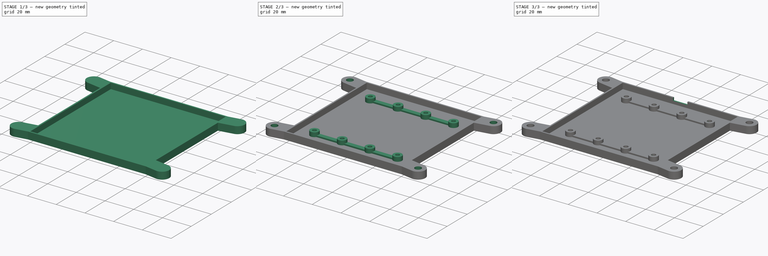
[diagram: build sequence overview — one tinted view per stage of 3, left to right]
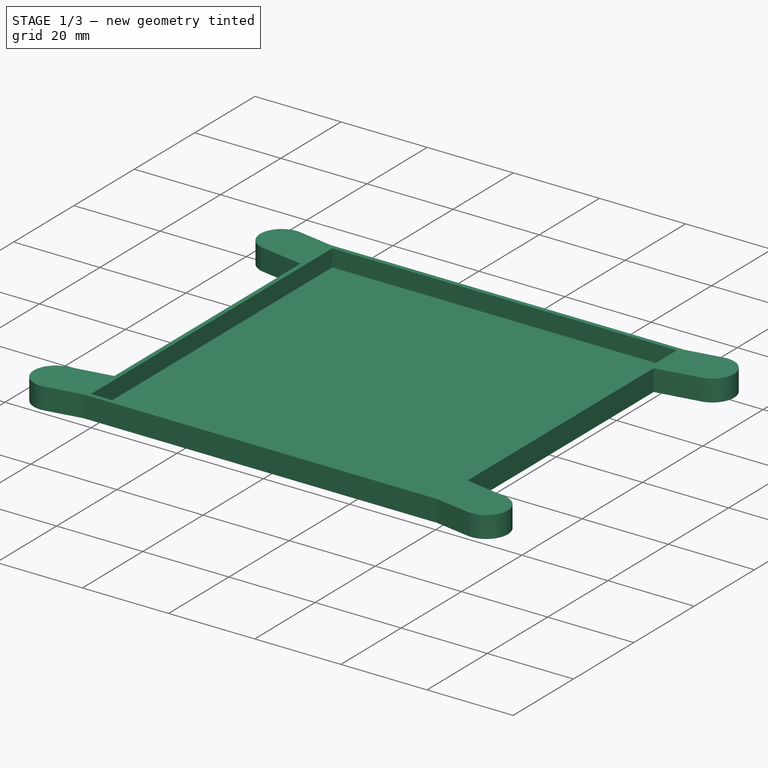
[diagram: stage 1 of 3 — iso view after this stage's code; geometry added in this stage tinted green]
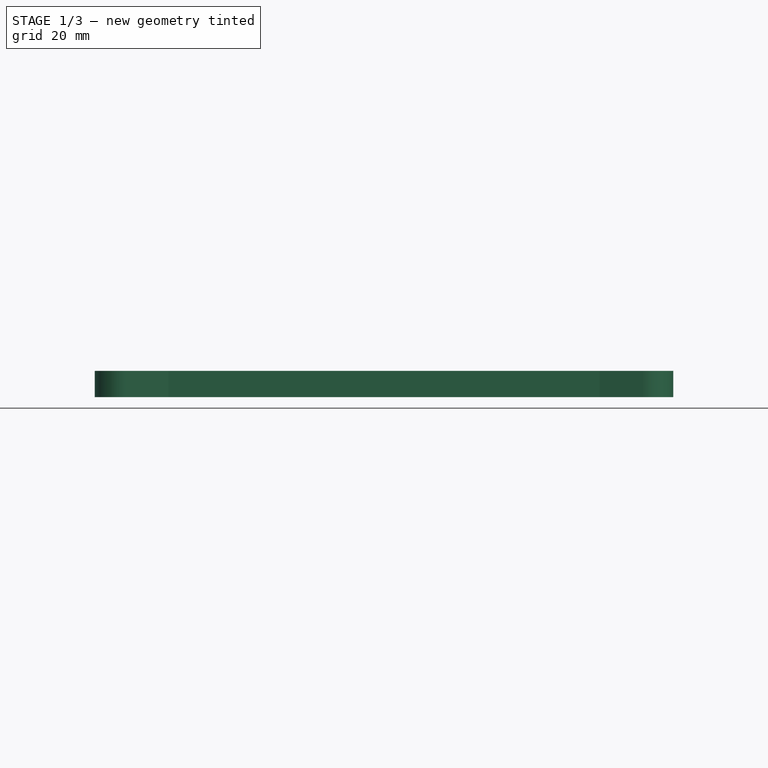
[diagram: stage 1 of 3 — front view after this stage's code; geometry added in this stage tinted green]
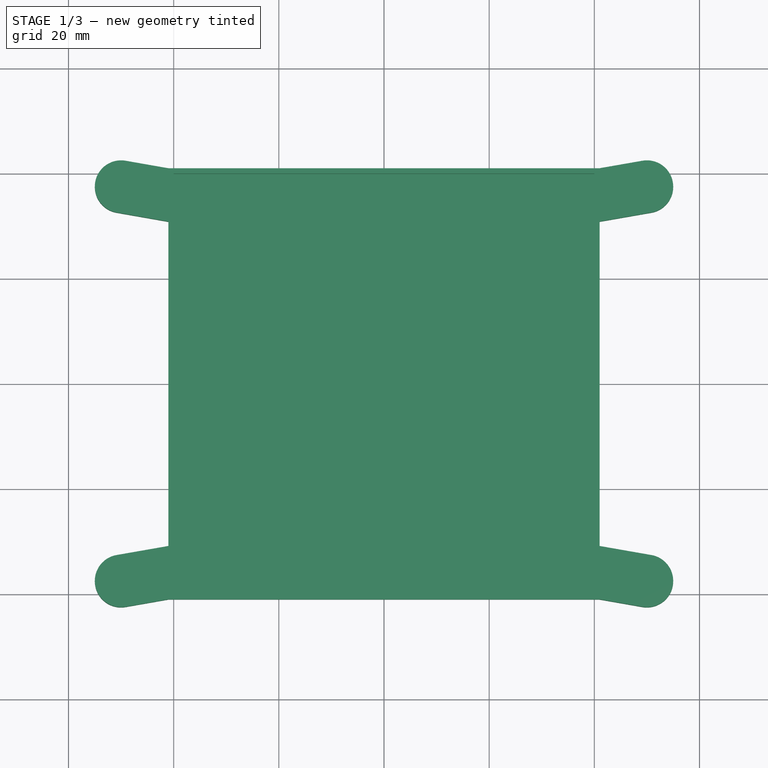
[diagram: stage 1 of 3 — top view after this stage's code; geometry added in this stage tinted green]
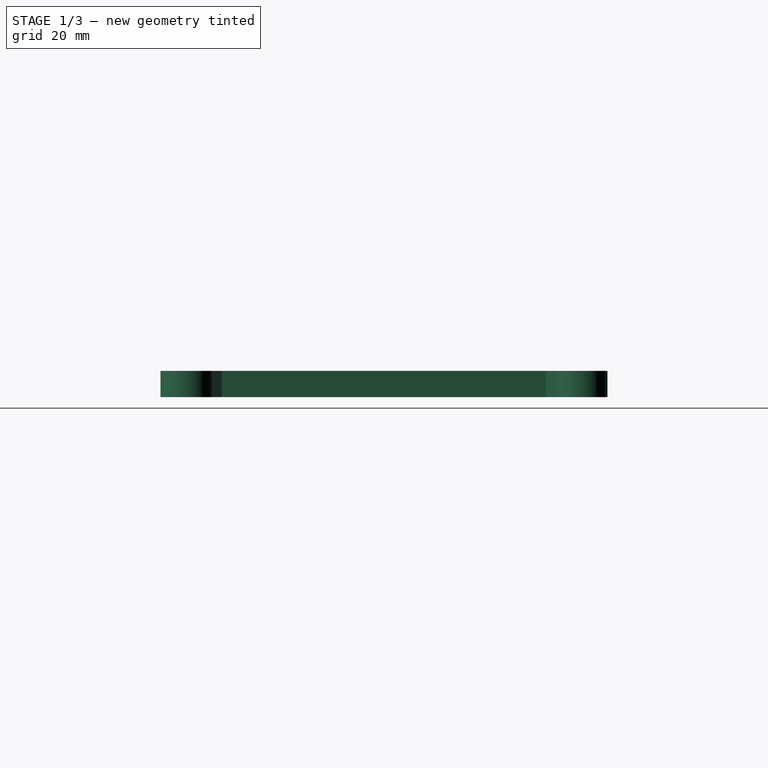
[diagram: stage 1 of 3 — right view after this stage's code; geometry added in this stage tinted green]
FCSTD DOCUMENT  (FreeCAD 1.0R38641 +678 (Git))
Label: foundation
License: All rights reserved
LicenseURL: https://en.wikipedia.org/wiki/All_rights_reserved
objects: Sketcher::SketchObject×7, PartDesign::Pad×4, PartDesign::Pocket×3, PartDesign::Body×1
note: 36 computed .brp shape members not serialized (recipe doc carries the construction recipe); baked Part::Feature solids carry a one-line shape summary decoded from their .brp

FEATURE [Sketcher::SketchObject] Sketch111
  ArcFitTolerance = 0
  AttachmentSupport = -> [XY_Plane013]
  FullyConstrained = true
  MakeInternals = false
  MapMode = 5
  sketch-geometry (24):
    g0: LineSegment StartX=-40 StartY=40 StartZ=0 EndX=40 EndY=40 EndZ=0
    g1: LineSegment StartX=-40 StartY=40 StartZ=0 EndX=-40 EndY=-40 EndZ=0
    g2: LineSegment StartX=-40 StartY=-40 StartZ=0 EndX=40 EndY=-40 EndZ=0
    g3: LineSegment StartX=40 StartY=40 StartZ=0 EndX=40 EndY=-40 EndZ=0
    g4: LineSegment StartX=-41.0206 StartY=41 StartZ=0 EndX=40.9794 EndY=41 EndZ=0
    g5: LineSegment StartX=41 StartY=30.8522 StartZ=0 EndX=41 EndY=-30.8478 EndZ=0
    g6: LineSegment StartX=41 StartY=-41 StartZ=0 EndX=-41 EndY=-41 EndZ=0
    g7: LineSegment StartX=-41 StartY=-30.8478 StartZ=0 EndX=-41 EndY=30.8434 EndZ=0
    g8: GeomPoint [constr] X=50 Y=37.5 Z=0
    g9: GeomPoint [constr] X=-50 Y=37.5 Z=0
    g10: GeomPoint [constr] X=-50 Y=-37.5 Z=0
    g11: GeomPoint [constr] X=50 Y=-37.5 Z=0
    g12: ArcOfCircle CenterX=50 CenterY=37.5 CenterZ=0 NormalX=0 NormalY=0 NormalZ=1 AngleXU=0 Radius=5 StartAngle=4.88532 EndAngle=8.02692
    g13: ArcOfCircle CenterX=-50 CenterY=37.5 CenterZ=0 NormalX=0 NormalY=0 NormalZ=1 AngleXU=0 Radius=5 StartAngle=1.397 EndAngle=4.53859
    g14: ArcOfCircle CenterX=-50 CenterY=-37.5 CenterZ=0 NormalX=0 NormalY=0 NormalZ=1 AngleXU=0 Radius=5 StartAngle=1.74416 EndAngle=4.88575
    g15: ArcOfCircle CenterX=50 CenterY=-37.5 CenterZ=0 NormalX=0 NormalY=0 NormalZ=1 AngleXU=0 Radius=5 StartAngle=4.53903 EndAngle=7.68062
    g16: LineSegment StartX=-49.1375 StartY=-42.4251 StartZ=0 EndX=-41 EndY=-41 EndZ=0
    g17: LineSegment StartX=41 StartY=-41 StartZ=0 EndX=49.1375 EndY=-42.4251 EndZ=0
    g18: LineSegment StartX=49.1396 StartY=42.4254 StartZ=0 EndX=40.9794 EndY=41 EndZ=0
    g19: LineSegment StartX=-41.0206 StartY=41 StartZ=0 EndX=-49.1354 EndY=42.4247 EndZ=0
    g20: LineSegment StartX=41 StartY=30.8522 StartZ=0 EndX=50.8604 EndY=32.5746 EndZ=0
    g21: LineSegment StartX=-41 StartY=30.8434 StartZ=0 EndX=-50.8646 EndY=32.5753 EndZ=0
    g22: LineSegment StartX=-50.8625 StartY=-32.5749 StartZ=0 EndX=-41 EndY=-30.8478 EndZ=0
    g23: LineSegment StartX=50.8625 StartY=-32.5749 StartZ=0 EndX=41 EndY=-30.8478 EndZ=0
  constraints (60):
    c: Horizontal(g0)
    c: DistanceX(g0,g0) = 80
    c: Coincident(g1,g0)
    c: Vertical(g1)
    c: DistanceY(g1,g1) = 80
    c: Distance(g-1,g0) = 40
    c: Distance(g-1,g1) = 40
    c: Coincident(g2,g1)
    c: Horizontal(g2)
    c: Coincident(g3,g0)
    c: Coincident(g3,g2)
    c: Vertical(g3)
    c: Horizontal(g4)
    c: Vertical(g5)
    c: Horizontal(g6)
    c: Vertical(g7)
    c: DistanceY(g6,g4) = 82
    c: Distance(g6,g3) = 1
    c: DistanceX(g4,g4) = 82
    c: Distance(g4,g0) = 1
    c: DistanceX(g-2,g11) = 50
    c: DistanceY(g-1,g10) = -37.5
    c: DistanceX(g-2,g10) = -50
    c: DistanceY(g-1,g9) = 37.5
    c: DistanceX(g-2,g9) = -50
    c: DistanceY(g-1,g8) = 37.5
    c: DistanceX(g-2,g8) = 50
    c: Coincident(g12,g8)
    c: Diameter(g12) = 10
    c: DistanceY(g-1,g11) = -37.5
    c: Coincident(g13,g9)
    c: Coincident(g14,g10)
    c: Coincident(g15,g11)
    c: Equal(g12,g13)
    c: Equal(g13,g14)
    c: Equal(g14,g15)
    c: Coincident(g16,g6)
    c: Coincident(g17,g6)
    c: Coincident(g18,g4)
    c: Coincident(g19,g4)
    c: Parallel(g18,g20)
    c: Parallel(g21,g19)
    c: Parallel(g22,g16)
    c: Parallel(g23,g17)
    c: Coincident(g7,g21)
    c: Coincident(g5,g20)
    c: Coincident(g5,g23)
    c: Coincident(g7,g22)
    c: DistanceX(g6,g6) = 82
    c: Distance(g-1,g5) = 41
    c: DistanceY(g5,g5) = 61.7
    c: Distance(g-1,g7) = 41
    c: Tangent(g13,g21) = 1.5708
    c: Tangent(g13,g19) = -1.5708
    c: Tangent(g12,g18) = -1.5708
    c: Tangent(g12,g20) = -1.5708
    c: Tangent(g15,g23) = -1.5708
    c: Tangent(g15,g17) = -1.5708
    c: Tangent(g14,g16) = -1.5708
    c: Tangent(g14,g22) = 1.5708
FEATURE [PartDesign::Pad] Pad042
  Direction = (0,0,1)
  Length = 5
  Length2 = 10
  Profile = -> Sketch111
  ReferenceAxis = -> Sketch111 [N_Axis]
  Suppressed = false
  Type = 0
FEATURE [Sketcher::SketchObject] Sketch112
  ArcFitTolerance = 0
  FullyConstrained = true
  MakeInternals = false
  MapMode = 5
  sketch-geometry (4):
    g0: LineSegment StartX=-41 StartY=41 StartZ=0 EndX=41 EndY=41 EndZ=0
    g1: LineSegment StartX=41 StartY=41 StartZ=0 EndX=41 EndY=-41 EndZ=0
    g2: LineSegment StartX=41 StartY=-41 StartZ=0 EndX=-41 EndY=-41 EndZ=0
    g3: LineSegment StartX=-41 StartY=-41 StartZ=0 EndX=-41 EndY=41 EndZ=0
  constraints (12):
    c: Coincident(g0,g1)
    c: Coincident(g1,g2)
    c: Coincident(g2,g3)
    c: Coincident(g3,g0)
    c: Horizontal(g0)
    c: Horizontal(g2)
    c: Vertical(g1)
    c: Vertical(g3)
    c: DistanceY(g1,g1) = 82
    c: DistanceX(g0,g0) = 82
    c: Distance(g-1,g1) = 41
    c: Distance(g-1,g0) = 41
FEATURE [PartDesign::Pad] Pad043
  BaseFeature = -> Pad042
  Direction = (0,0,1)
  Length = 1
  Length2 = 10
  Profile = -> Sketch112
  ReferenceAxis = -> Sketch112 [N_Axis]
  Suppressed = false
  Type = 0
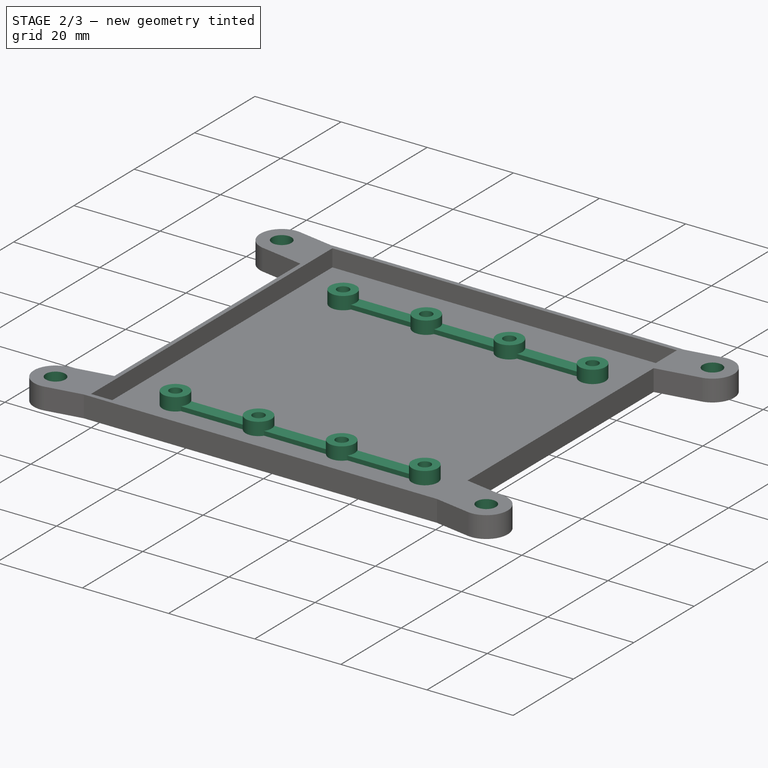
[diagram: stage 2 of 3 — iso view after this stage's code; geometry added in this stage tinted green]
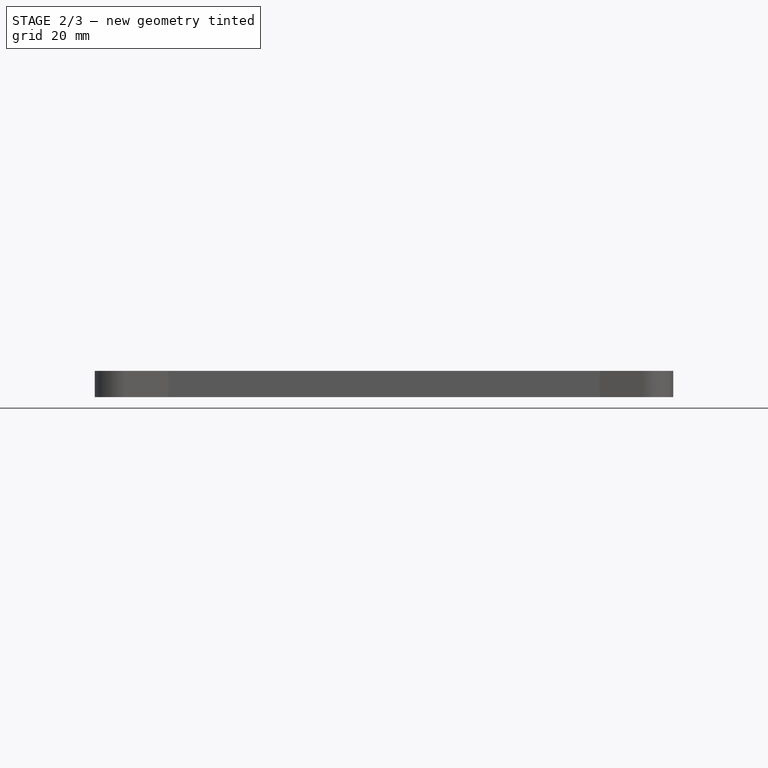
[diagram: stage 2 of 3 — front view after this stage's code; geometry added in this stage tinted green]
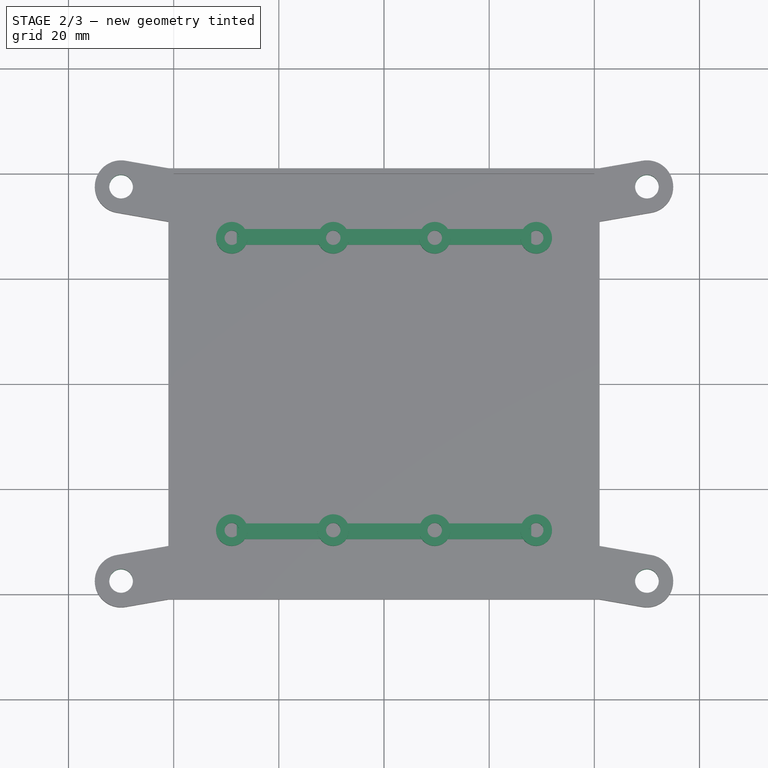
[diagram: stage 2 of 3 — top view after this stage's code; geometry added in this stage tinted green]
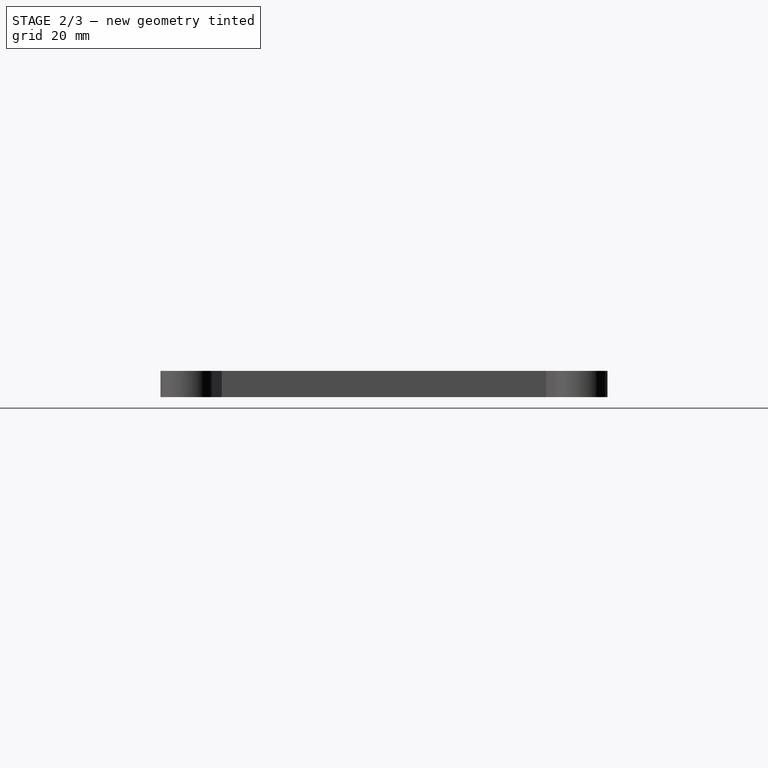
[diagram: stage 2 of 3 — right view after this stage's code; geometry added in this stage tinted green]
FEATURE [Sketcher::SketchObject] Sketch114
  ArcFitTolerance = 0
  AttachmentSupport = -> [XY_Plane013]
  FullyConstrained = true
  MakeInternals = false
  MapMode = 5
  sketch-geometry (24):
    g0: LineSegment [constr] StartX=-39.55 StartY=27.805 StartZ=0 EndX=-39.55 EndY=-27.805 EndZ=0
    g1: LineSegment [constr] StartX=-39.55 StartY=27.805 StartZ=0 EndX=40.45 EndY=27.805 EndZ=0
    g2: LineSegment [constr] StartX=-39.55 StartY=-27.805 StartZ=0 EndX=40.45 EndY=-27.805 EndZ=0
    g3: LineSegment [constr] StartX=40.45 StartY=-27.805 StartZ=0 EndX=40.45 EndY=27.805 EndZ=0
    g4: LineSegment [constr] StartX=-28.95 StartY=27.805 StartZ=0 EndX=-28.95 EndY=-27.805 EndZ=0
    g5: LineSegment [constr] StartX=-9.65 StartY=27.805 StartZ=0 EndX=-9.65 EndY=-27.805 EndZ=0
    g6: LineSegment [constr] StartX=9.65 StartY=27.805 StartZ=0 EndX=9.65 EndY=-27.805 EndZ=0
    g7: LineSegment [constr] StartX=28.95 StartY=27.805 StartZ=0 EndX=28.95 EndY=-27.805 EndZ=0
    g8: Circle CenterX=-9.65 CenterY=27.805 CenterZ=0 NormalX=0 NormalY=0 NormalZ=1 AngleXU=0 Radius=1.375
    g9: Circle CenterX=9.65 CenterY=27.805 CenterZ=0 NormalX=0 NormalY=0 NormalZ=1 AngleXU=0 Radius=1.375
    g10: Circle CenterX=-9.65 CenterY=-27.805 CenterZ=0 NormalX=0 NormalY=0 NormalZ=1 AngleXU=0 Radius=1.375
    g11: Circle CenterX=9.65 CenterY=-27.805 CenterZ=0 NormalX=0 NormalY=0 NormalZ=1 AngleXU=0 Radius=1.375
    g12: Circle CenterX=-28.95 CenterY=27.805 CenterZ=0 NormalX=0 NormalY=0 NormalZ=1 AngleXU=0 Radius=1.375
    g13: Circle CenterX=28.95 CenterY=27.805 CenterZ=0 NormalX=0 NormalY=0 NormalZ=1 AngleXU=0 Radius=1.375
    g14: Circle CenterX=28.95 CenterY=-27.805 CenterZ=0 NormalX=0 NormalY=0 NormalZ=1 AngleXU=0 Radius=1.375
    g15: Circle CenterX=-28.95 CenterY=-27.805 CenterZ=0 NormalX=0 NormalY=0 NormalZ=1 AngleXU=0 Radius=1.375
    g16: Circle CenterX=-28.95 CenterY=27.805 CenterZ=0 NormalX=0 NormalY=0 NormalZ=1 AngleXU=0 Radius=3
    g17: Circle CenterX=-9.65 CenterY=27.805 CenterZ=0 NormalX=0 NormalY=0 NormalZ=1 AngleXU=0 Radius=3
    g18: Circle CenterX=9.65 CenterY=27.805 CenterZ=0 NormalX=0 NormalY=0 NormalZ=1 AngleXU=0 Radius=3
    g19: Circle CenterX=28.95 CenterY=27.805 CenterZ=0 NormalX=0 NormalY=0 NormalZ=1 AngleXU=0 Radius=3
    g20: Circle CenterX=28.95 CenterY=-27.805 CenterZ=0 NormalX=0 NormalY=0 NormalZ=1 AngleXU=0 Radius=3
    g21: Circle CenterX=9.65 CenterY=-27.805 CenterZ=0 NormalX=0 NormalY=0 NormalZ=1 AngleXU=0 Radius=3
    g22: Circle CenterX=-9.65 CenterY=-27.805 CenterZ=0 NormalX=0 NormalY=0 NormalZ=1 AngleXU=0 Radius=3
    g23: Circle CenterX=-28.95 CenterY=-27.805 CenterZ=0 NormalX=0 NormalY=0 NormalZ=1 AngleXU=0 Radius=3
  constraints (60):
    c: Vertical(g0)
    c: DistanceY(g0,g0) = 55.61
    c: Coincident(g1,g0)
    c: Horizontal(g1)
    c: Coincident(g2,g0)
    c: Horizontal(g2)
    c: Coincident(g3,g2)
    c: Coincident(g3,g1)
    c: Vertical(g3)
    c: Distance(g-1,g1) = 27.805
    c: DistanceX(g2,g2) = 80
    c: Vertical(g4)
    c: Vertical(g5)
    c: Vertical(g6)
    c: Vertical(g7)
    c: Distance(g4,g5) = 19.3
    c: Distance(g5,g6) = 19.3
    c: Distance(g6,g7) = 19.3
    c: Distance(g7,g3) = 11.5
    c: PointOnObject(g7,g2)
    c: PointOnObject(g6,g2)
    c: PointOnObject(g5,g2)
    c: PointOnObject(g4,g2)
    c: PointOnObject(g7,g1)
    c: PointOnObject(g6,g1)
    c: PointOnObject(g5,g1)
    c: PointOnObject(g4,g1)
    c: Distance(g-1,g5) = 9.65
    c: Coincident(g14,g7)
    c: Coincident(g15,g4)
    c: Diameter(g12) = 2.75
    c: Coincident(g12,g4)
    c: Equal(g12,g8)
    c: Equal(g8,g9)
    c: Equal(g9,g13)
    c: Equal(g13,g14)
    c: Equal(g14,g11)
    c: Equal(g11,g10)
    c: Equal(g10,g15)
    c: Coincident(g8,g5)
    c: Coincident(g9,g6)
    c: Coincident(g13,g7)
    c: Coincident(g11,g6)
    c: Coincident(g10,g5)
    c: Coincident(g16,g12)
    c: Coincident(g17,g8)
    c: Coincident(g18,g9)
    c: Coincident(g19,g13)
    c: Coincident(g20,g14)
    c: Coincident(g21,g11)
    c: Coincident(g22,g10)
    c: Coincident(g23,g15)
    c: Diameter(g16) = 6
    c: Equal(g16,g17)
    c: Equal(g17,g18)
    c: Equal(g18,g19)
    c: Equal(g19,g20)
    c: Equal(g20,g21)
    c: Equal(g21,g22)
    c: Equal(g22,g23)
FEATURE [PartDesign::Pad] Pad045
  BaseFeature = -> Pad043
  Direction = (0,0,1)
  Length = 4
  Length2 = 10
  Profile = -> Sketch114
  ReferenceAxis = -> Sketch114 [N_Axis]
  Suppressed = false
  Type = 0
FEATURE [Sketcher::SketchObject] Sketch215
  ArcFitTolerance = 0
  AttachmentSupport = -> [XY_Plane013]
  FullyConstrained = true
  MakeInternals = false
  MapMode = 5
  sketch-geometry (32):
    g0: LineSegment [constr] StartX=-38.5 StartY=28 StartZ=0 EndX=-38.5 EndY=-28 EndZ=0
    g1: LineSegment [constr] StartX=-38.5 StartY=28 StartZ=0 EndX=41.5 EndY=28 EndZ=0
    g2: LineSegment [constr] StartX=-38.5 StartY=-28 StartZ=0 EndX=41.5 EndY=-28 EndZ=0
    g3: LineSegment [constr] StartX=41.5 StartY=-28 StartZ=0 EndX=41.5 EndY=28 EndZ=0
    g4: LineSegment [constr] StartX=-30 StartY=28 StartZ=0 EndX=-30 EndY=-28 EndZ=0
    g5: LineSegment [constr] StartX=-10 StartY=28 StartZ=0 EndX=-10 EndY=-28 EndZ=0
    g6: LineSegment [constr] StartX=10 StartY=28 StartZ=0 EndX=10 EndY=-28 EndZ=0
    g7: LineSegment [constr] StartX=30 StartY=28 StartZ=0 EndX=30 EndY=-28 EndZ=0
    g8: LineSegment StartX=-28 StartY=29.5 StartZ=0 EndX=-12 EndY=29.5 EndZ=0
    g9: LineSegment StartX=28 StartY=26.5 StartZ=0 EndX=12 EndY=26.5 EndZ=0
    g10: LineSegment StartX=-28 StartY=-26.5 StartZ=0 EndX=-12 EndY=-26.5 EndZ=0
    g11: LineSegment StartX=28 StartY=-29.5 StartZ=0 EndX=12 EndY=-29.5 EndZ=0
    g12: LineSegment StartX=28 StartY=-26.5 StartZ=0 EndX=28 EndY=-29.5 EndZ=0
    g13: LineSegment StartX=-8 StartY=29.5 StartZ=0 EndX=8 EndY=29.5 EndZ=0
    g14: LineSegment StartX=-12 StartY=26.5 StartZ=0 EndX=-28 EndY=26.5 EndZ=0
    g15: LineSegment StartX=12 StartY=29.5 StartZ=0 EndX=28 EndY=29.5 EndZ=0
    g16: LineSegment StartX=8 StartY=26.5 StartZ=0 EndX=-8 EndY=26.5 EndZ=0
    g17: LineSegment StartX=-8 StartY=-26.5 StartZ=0 EndX=8 EndY=-26.5 EndZ=0
    g18: LineSegment StartX=-12 StartY=-29.5 StartZ=0 EndX=-28 EndY=-29.5 EndZ=0
    g19: LineSegment StartX=12 StartY=-26.5 StartZ=0 EndX=28 EndY=-26.5 EndZ=0
    g20: LineSegment StartX=8 StartY=-29.5 StartZ=0 EndX=-8 EndY=-29.5 EndZ=0
    g21: LineSegment StartX=-28 StartY=29.5 StartZ=0 EndX=-28 EndY=26.5 EndZ=0
    g22: LineSegment StartX=-12 StartY=26.5 StartZ=0 EndX=-12 EndY=29.5 EndZ=0
    g23: LineSegment StartX=-8 StartY=29.5 StartZ=0 EndX=-8 EndY=26.5 EndZ=0
    g24: LineSegment StartX=8 StartY=29.5 StartZ=0 EndX=8 EndY=26.5 EndZ=0
    g25: LineSegment StartX=12 StartY=29.5 StartZ=0 EndX=12 EndY=26.5 EndZ=0
    g26: LineSegment StartX=28 StartY=29.5 StartZ=0 EndX=28 EndY=26.5 EndZ=0
    g27: LineSegment StartX=-28 StartY=-26.5 StartZ=0 EndX=-28 EndY=-29.5 EndZ=0
    g28: LineSegment StartX=-12 StartY=-26.5 StartZ=0 EndX=-12 EndY=-29.5 EndZ=0
    g29: LineSegment StartX=-8 StartY=-26.5 StartZ=0 EndX=-8 EndY=-29.5 EndZ=0
    g30: LineSegment StartX=8 StartY=-29.5 StartZ=0 EndX=8 EndY=-26.5 EndZ=0
    g31: LineSegment StartX=12 StartY=-26.5 StartZ=0 EndX=12 EndY=-29.5 EndZ=0
  constraints (100):
    c: Vertical(g0)
    c: DistanceY(g0,g0) = 56
    c: Coincident(g1,g0)
    c: Horizontal(g1)
    c: Coincident(g2,g0)
    c: Horizontal(g2)
    c: Coincident(g3,g2)
    c: Coincident(g3,g1)
    c: Vertical(g3)
    c: Distance(g-1,g1) = 28
    c: DistanceX(g2,g2) = 80
    c: Vertical(g4)
    c: Vertical(g5)
    c: Vertical(g6)
    c: Vertical(g7)
    c: Distance(g4,g5) = 20
    c: Distance(g5,g6) = 20
    c: Distance(g6,g7) = 20
    c: Distance(g7,g3) = 11.5
    c: PointOnObject(g7,g2)
    c: PointOnObject(g6,g2)
    c: PointOnObject(g5,g2)
    c: PointOnObject(g4,g2)
    c: PointOnObject(g7,g1)
    c: PointOnObject(g6,g1)
    c: PointOnObject(g5,g1)
    c: PointOnObject(g4,g1)
    c: Horizontal(g8)
    c: Horizontal(g9)
    c: Horizontal(g10)
    c: Horizontal(g11)
    c: Coincident(g12,g19)
    c: Coincident(g12,g11)
    c: Vertical(g12)
    c: Horizontal(g19)
    c: Horizontal(g17)
    c: Horizontal(g20)
    c: Horizontal(g18)
    c: Horizontal(g14)
    c: Horizontal(g13)
    c: Horizontal(g16)
    c: Horizontal(g15)
    c: Distance(g-1,g5) = 10
    c: Distance(g5,g16) = 1.5
    c: Distance(g5,g13) = 1.5
    c: Distance(g6,g9) = 1.5
    c: Distance(g6,g15) = 1.5
    c: Distance(g4,g14) = 1.5
    c: Distance(g4,g8) = 1.5
    c: Vertical(g21)
    c: Coincident(g14,g21)
    c: Coincident(g21,g8)
    c: Distance(g4,g21) = 2
    c: Vertical(g22)
    c: Coincident(g22,g14)
    c: Coincident(g22,g8)
    c: Distance(g5,g22) = 2
    c: Vertical(g23)
    c: Coincident(g16,g23)
    c: Coincident(g23,g13)
    c: Vertical(g24)
    c: Coincident(g24,g16)
    c: Coincident(g24,g13)
    c: Distance(g5,g23) = 2
    c: Distance(g6,g24) = 2
    c: Coincident(g25,g15)
    c: Coincident(g25,g9)
    c: Vertical(g25)
    c: Distance(g6,g25) = 2
    c: Vertical(g26)
    c: Coincident(g26,g9)
    c: Coincident(g26,g15)
    c: Distance(g7,g26) = 2
    c: Distance(g5,g10) = 1.5
    c: Distance(g5,g18) = 1.5
    c: Coincident(g27,g10)
    c: Coincident(g27,g18)
    c: Vertical(g27)
    c: Distance(g4,g27) = 2
    c: Coincident(g28,g10)
    c: Coincident(g28,g18)
    c: Vertical(g28)
    c: Distance(g5,g28) = 2
    c: Coincident(g29,g17)
    c: Coincident(g29,g20)
    c: Vertical(g29)
    c: Distance(g5,g29) = 2
    c: Coincident(g30,g20)
    c: Coincident(g30,g17)
    c: Vertical(g30)
    c: Distance(g6,g30) = 2
    c: Distance(g6,g20) = 1.5
    c: Distance(g6,g17) = 1.5
    c: Coincident(g31,g19)
    c: Coincident(g31,g11)
    c: Vertical(g31)
    c: Distance(g6,g31) = 2
    c: Distance(g7,g12) = 2
    c: Distance(g7,g19) = 1.5
    c: Distance(g7,g11) = 1.5
FEATURE [PartDesign::Pad] Pad095
  BaseFeature = -> Pad045
  Direction = (0,0,1)
  Length = 2
  Length2 = 10
  Profile = -> Sketch215
  ReferenceAxis = -> Sketch215 [N_Axis]
  Suppressed = false
  Type = 0
FEATURE [Sketcher::SketchObject] Sketch216
  ArcFitTolerance = 0
  AttachmentSupport = -> [XY_Plane013]
  FullyConstrained = true
  MakeInternals = false
  MapMode = 5
  sketch-geometry (8):
    g0: GeomPoint [constr] X=50 Y=37.5 Z=0
    g1: GeomPoint [constr] X=-50 Y=37.5 Z=0
    g2: GeomPoint [constr] X=-50 Y=-37.5 Z=0
    g3: GeomPoint [constr] X=50 Y=-37.5 Z=0
    g4: Circle CenterX=-50 CenterY=37.5 CenterZ=0 NormalX=0 NormalY=0 NormalZ=1 AngleXU=0 Radius=2.25
    g5: Circle CenterX=50 CenterY=37.5 CenterZ=0 NormalX=0 NormalY=0 NormalZ=1 AngleXU=0 Radius=2.25
    g6: Circle CenterX=50 CenterY=-37.5 CenterZ=0 NormalX=0 NormalY=0 NormalZ=1 AngleXU=0 Radius=2.25
    g7: Circle CenterX=-50 CenterY=-37.5 CenterZ=0 NormalX=0 NormalY=0 NormalZ=1 AngleXU=0 Radius=2.25
  constraints (16):
    c: DistanceX(g-2,g3) = 50
    c: DistanceY(g-1,g2) = -37.5
    c: DistanceX(g-2,g2) = -50
    c: DistanceY(g-1,g1) = 37.5
    c: DistanceX(g-2,g1) = -50
    c: DistanceY(g-1,g0) = 37.5
    c: DistanceX(g-2,g0) = 50
    c: DistanceY(g-1,g3) = -37.5
    c: Coincident(g4,g1)
    c: Coincident(g5,g0)
    c: Coincident(g6,g3)
    c: Coincident(g7,g2)
    c: Diameter(g4) = 4.5
    c: Equal(g4,g5)
    c: Equal(g5,g6)
    c: Equal(g6,g7)
FEATURE [PartDesign::Pocket] Pocket088
  BaseFeature = -> Pad095
  Direction = (0,0,-1)
  Length = 10
  Length2 = 5
  Profile = -> Sketch216
  ReferenceAxis = -> Sketch216 [N_Axis]
  Reversed = true
  Suppressed = false
  Type = 0
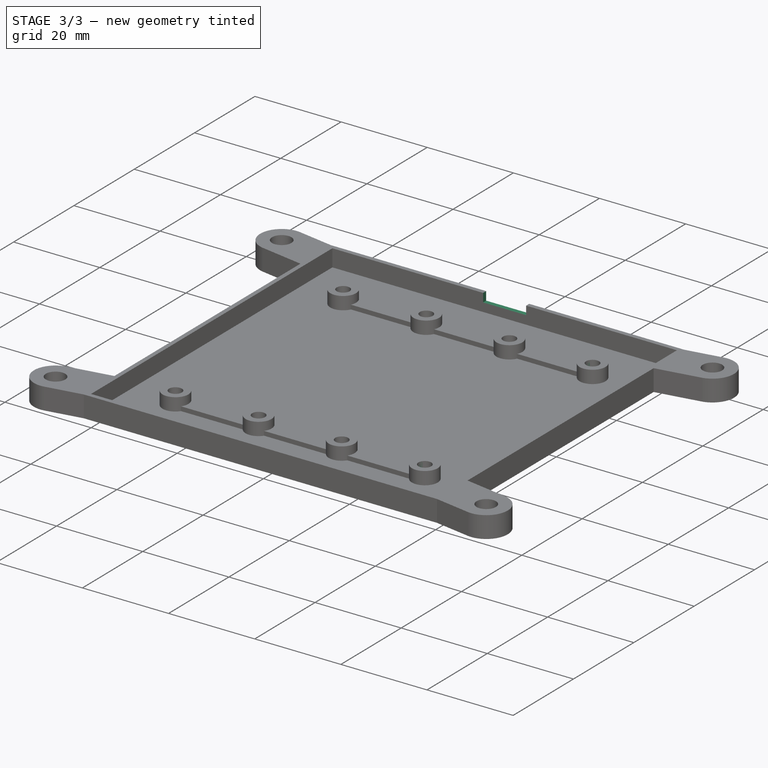
[diagram: stage 3 of 3 — iso view after this stage's code; geometry added in this stage tinted green]
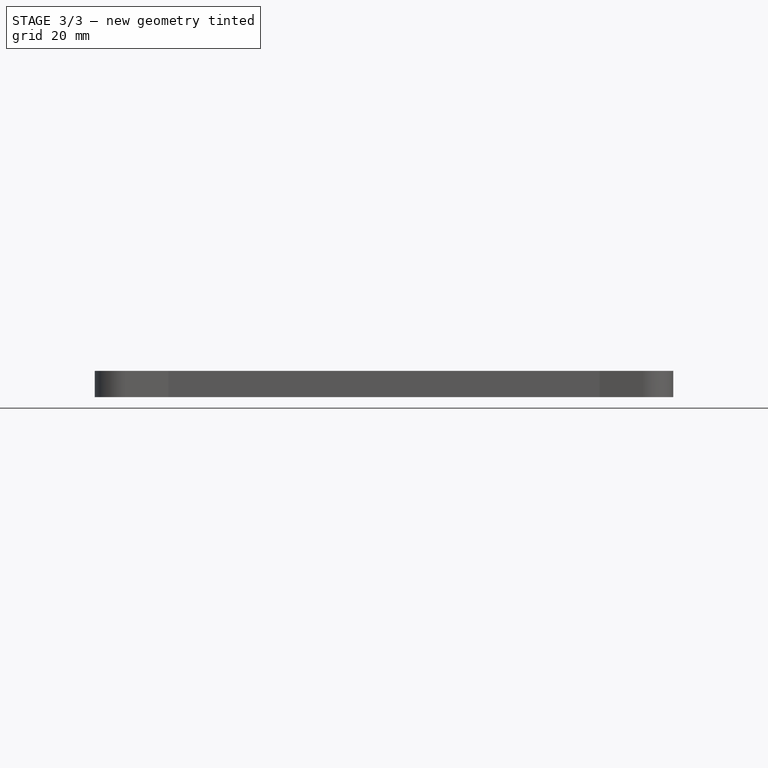
[diagram: stage 3 of 3 — front view after this stage's code; geometry added in this stage tinted green]
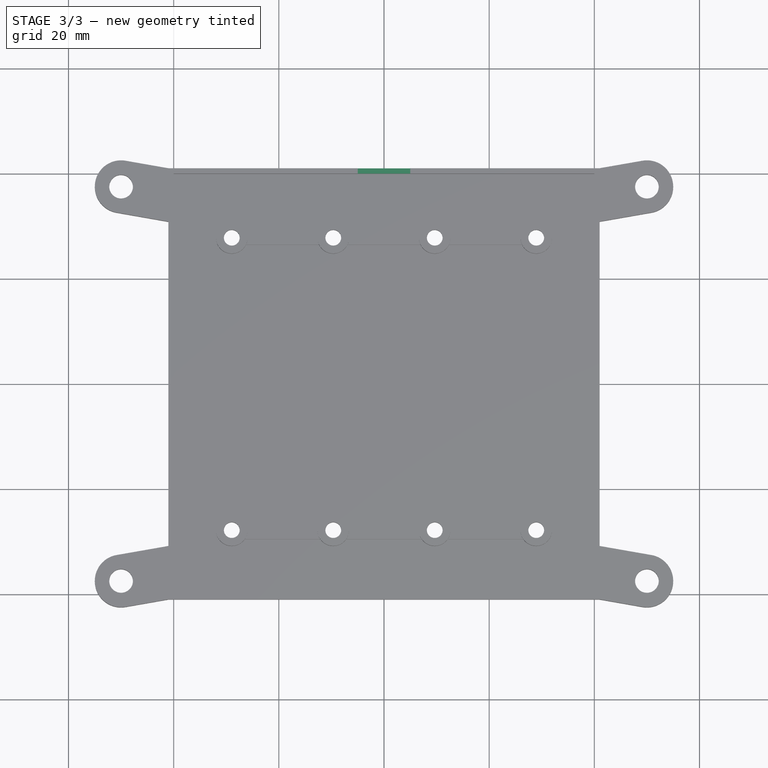
[diagram: stage 3 of 3 — top view after this stage's code; geometry added in this stage tinted green]
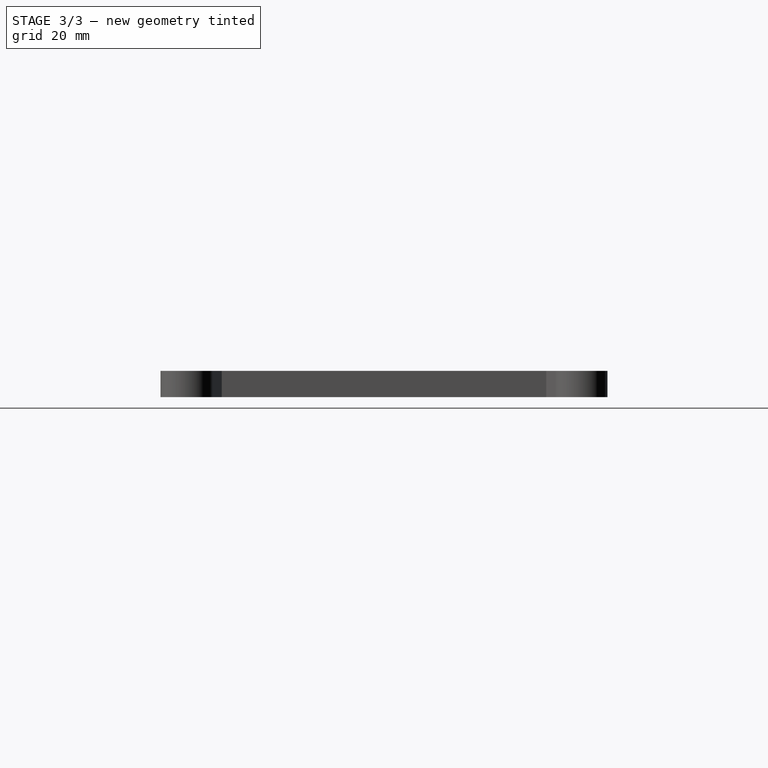
[diagram: stage 3 of 3 — right view after this stage's code; geometry added in this stage tinted green]
FEATURE [Sketcher::SketchObject] Sketch217
  ArcFitTolerance = 0
  AttachmentSupport = -> [Pocket088]
  FullyConstrained = true
  MakeInternals = false
  MapMode = 5
  Placement = pos=(0,41,0) rot=(0,0.707107,0.707107;3.14159rad)
  sketch-geometry (4):
    g0: LineSegment StartX=-5 StartY=5 StartZ=0 EndX=5 EndY=5 EndZ=0
    g1: LineSegment StartX=5 StartY=5 StartZ=0 EndX=5 EndY=3 EndZ=0
    g2: LineSegment StartX=5 StartY=3 StartZ=0 EndX=-5 EndY=3 EndZ=0
    g3: LineSegment StartX=-5 StartY=3 StartZ=0 EndX=-5 EndY=5 EndZ=0
  constraints (12):
    c: Coincident(g0,g1)
    c: Coincident(g1,g2)
    c: Coincident(g2,g3)
    c: Coincident(g3,g0)
    c: Horizontal(g0)
    c: Horizontal(g2)
    c: Vertical(g1)
    c: Vertical(g3)
    c: Distance(g-1,g2) = 3
    c: DistanceY(g1,g1) = 2
    c: DistanceX(g0,g0) = 10
    c: Distance(g-1,g3) = 5
FEATURE [PartDesign::Pocket] Pocket089
  BaseFeature = -> Pocket088
  Direction = (0,-1,2e-16)
  Length = 5
  Length2 = 5
  Profile = -> Sketch217
  ReferenceAxis = -> Sketch217 [N_Axis]
  Suppressed = false
  Type = 0
FEATURE [Sketcher::SketchObject] Sketch255
  ArcFitTolerance = 0
  AttachmentSupport = -> [XY_Plane013]
  FullyConstrained = true
  MakeInternals = false
  MapMode = 5
  sketch-geometry (16):
    g0: LineSegment [constr] StartX=-39.55 StartY=27.805 StartZ=0 EndX=-39.55 EndY=-27.805 EndZ=0
    g1: LineSegment [constr] StartX=-39.55 StartY=27.805 StartZ=0 EndX=40.45 EndY=27.805 EndZ=0
    g2: LineSegment [constr] StartX=-39.55 StartY=-27.805 StartZ=0 EndX=40.45 EndY=-27.805 EndZ=0
    g3: LineSegment [constr] StartX=40.45 StartY=-27.805 StartZ=0 EndX=40.45 EndY=27.805 EndZ=0
    g4: LineSegment [constr] StartX=-28.95 StartY=27.805 StartZ=0 EndX=-28.95 EndY=-27.805 EndZ=0
    g5: LineSegment [constr] StartX=-9.65 StartY=27.805 StartZ=0 EndX=-9.65 EndY=-27.805 EndZ=0
    g6: LineSegment [constr] StartX=9.65 StartY=27.805 StartZ=0 EndX=9.65 EndY=-27.805 EndZ=0
    g7: LineSegment [constr] StartX=28.95 StartY=27.805 StartZ=0 EndX=28.95 EndY=-27.805 EndZ=0
    g8: Circle CenterX=-9.65 CenterY=27.805 CenterZ=0 NormalX=0 NormalY=0 NormalZ=1 AngleXU=0 Radius=1.5
    g9: Circle CenterX=9.65 CenterY=27.805 CenterZ=0 NormalX=0 NormalY=0 NormalZ=1 AngleXU=0 Radius=1.5
    g10: Circle CenterX=-9.65 CenterY=-27.805 CenterZ=0 NormalX=0 NormalY=0 NormalZ=1 AngleXU=0 Radius=1.5
    g11: Circle CenterX=9.65 CenterY=-27.805 CenterZ=0 NormalX=0 NormalY=0 NormalZ=1 AngleXU=0 Radius=1.5
    g12: Circle CenterX=-28.95 CenterY=27.805 CenterZ=0 NormalX=0 NormalY=0 NormalZ=1 AngleXU=0 Radius=1.5
    g13: Circle CenterX=28.95 CenterY=27.805 CenterZ=0 NormalX=0 NormalY=0 NormalZ=1 AngleXU=0 Radius=1.5
    g14: Circle CenterX=28.95 CenterY=-27.805 CenterZ=0 NormalX=0 NormalY=0 NormalZ=1 AngleXU=0 Radius=1.5
    g15: Circle CenterX=-28.95 CenterY=-27.805 CenterZ=0 NormalX=0 NormalY=0 NormalZ=1 AngleXU=0 Radius=1.5
  constraints (44):
    c: Vertical(g0)
    c: DistanceY(g0,g0) = 55.61
    c: Coincident(g1,g0)
    c: Horizontal(g1)
    c: Coincident(g2,g0)
    c: Horizontal(g2)
    c: Coincident(g3,g2)
    c: Coincident(g3,g1)
    c: Vertical(g3)
    c: Distance(g-1,g1) = 27.805
    c: DistanceX(g2,g2) = 80
    c: Vertical(g4)
    c: Vertical(g5)
    c: Vertical(g6)
    c: Vertical(g7)
    c: Distance(g4,g5) = 19.3
    c: Distance(g5,g6) = 19.3
    c: Distance(g6,g7) = 19.3
    c: Distance(g7,g3) = 11.5
    c: PointOnObject(g7,g2)
    c: PointOnObject(g6,g2)
    c: PointOnObject(g5,g2)
    c: PointOnObject(g4,g2)
    c: PointOnObject(g7,g1)
    c: PointOnObject(g6,g1)
    c: PointOnObject(g5,g1)
    c: PointOnObject(g4,g1)
    c: Distance(g-1,g5) = 9.65
    c: Coincident(g14,g7)
    c: Coincident(g15,g4)
    c: Diameter(g12) = 3
    c: Coincident(g12,g4)
    c: Equal(g12,g8)
    c: Equal(g8,g9)
    c: Equal(g9,g13)
    c: Equal(g13,g14)
    c: Equal(g14,g11)
    c: Equal(g11,g10)
    c: Equal(g10,g15)
    c: Coincident(g8,g5)
    c: Coincident(g9,g6)
    c: Coincident(g13,g7)
    c: Coincident(g11,g6)
    c: Coincident(g10,g5)
FEATURE [PartDesign::Pocket] Pocket103
  BaseFeature = -> Pocket089
  Direction = (0,0,-1)
  Length = 10
  Length2 = 5
  Midplane = true
  Profile = -> Sketch255
  ReferenceAxis = -> Sketch255 [N_Axis]
  Suppressed = false
  Type = 0
FEATURE [PartDesign::Body] Body013  label="foundation"
  AllowCompound = false
  Group = -> [Sketch111,Pad042,Sketch112,Pad043,Sketch114,Pad045,Sketch215,Pad095,Sketch216,Pocket088,Sketch217,Pocket089,Sketch255,Pocket103]
  Origin = -> Origin013
  Placement = pos=(-108,0,0) rot=(0,0,1;0rad)
  Tip = -> Pocket103
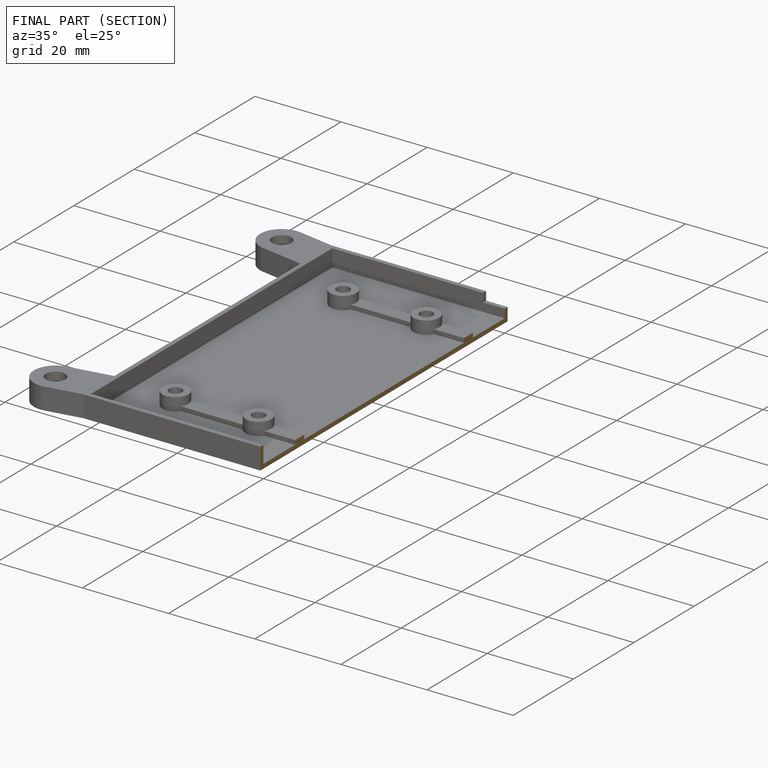
[diagram: finished part — half-section view (interior)]
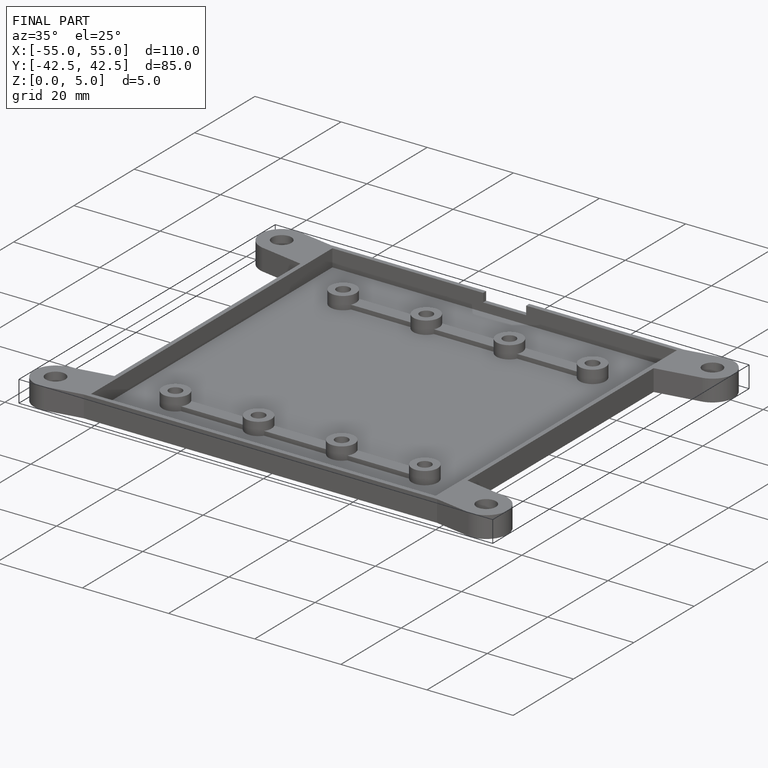
[diagram: finished part — iso view with bounding-box wireframe]
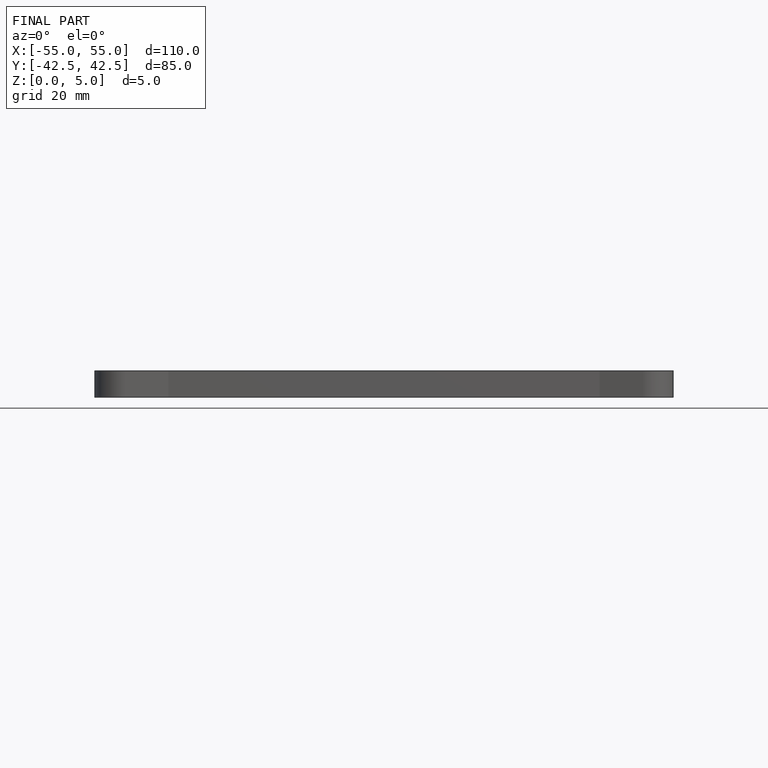
[diagram: finished part — front view with bounding-box wireframe]
